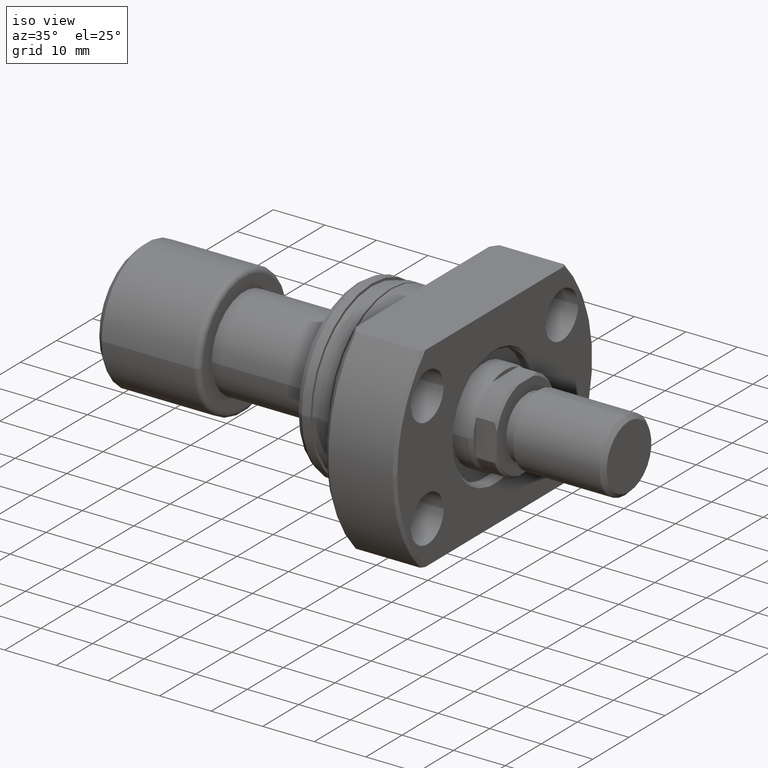
[diagram: clean part render]
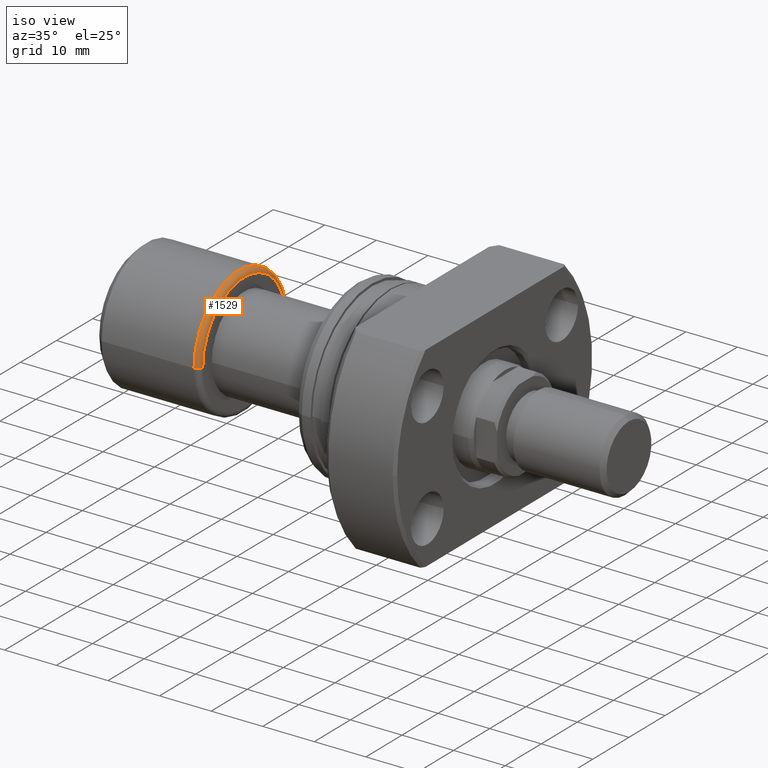
[diagram: same view with one face highlighted and labeled with its STEP entity id]
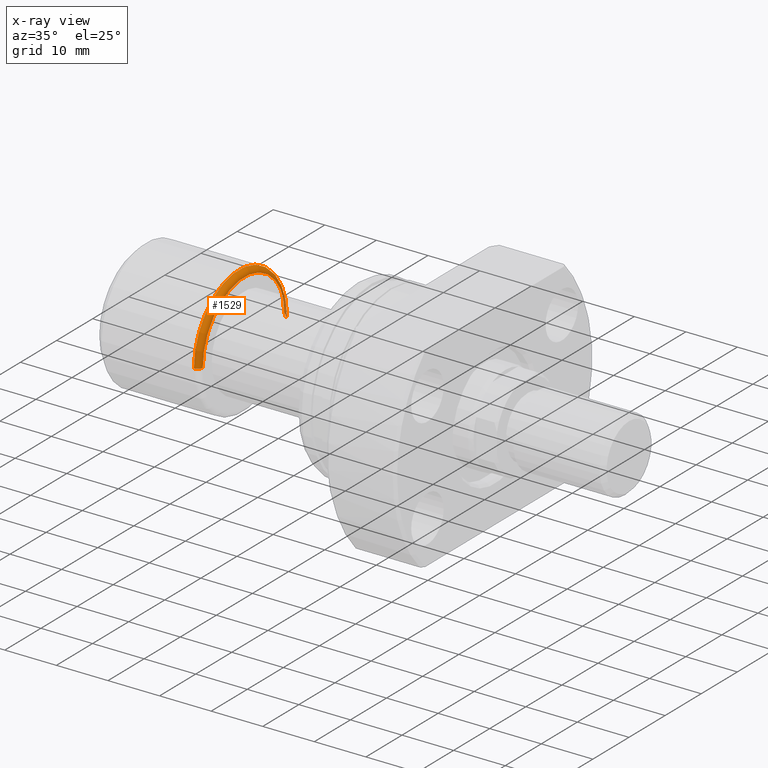
[diagram: x-ray of the same camera — body ghosted, the highlighted face saturated]
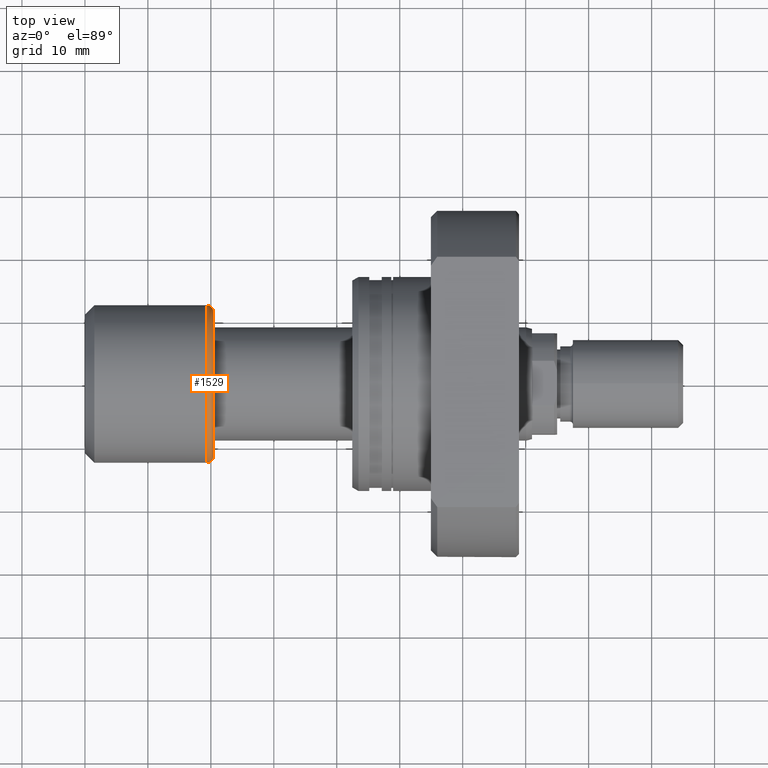
[diagram: same view with one face highlighted and labeled with its STEP entity id]
A machine part, iso view. The second image highlights one B-rep face of the part: STEP entity #1529.
The next image is the same camera in x-ray: the body ghosted, the highlighted face saturated — about 4% of this face is hidden behind the body in this view.
A second angle (top view) of the same face is appended — the face is thin or edge-on in the first view.
In plain terms, the highlighted toroidal blend (fillet) surface has major radius 11.5 mm and minor (blend) radius 1 mm.
Its self-contained STEP definition (entity closure, byte-faithful):
#87 = DIRECTION ( 'NONE',  ( 0.000000000000000000, -1.000000000000000000, 0.000000000000000000 ) ) ;
#179 = CIRCLE ( 'NONE', #2744, 1.000000000000000888 ) ;
#371 = DIRECTION ( 'NONE',  ( -1.000000000000000000, -1.069542322069065801E-17, -0.000000000000000000 ) ) ;
#401 = DIRECTION ( 'NONE',  ( 1.309811581274509052E-33, -1.224646799147353207E-16, 1.000000000000000000 ) ) ;
#561 = DIRECTION ( 'NONE',  ( 0.000000000000000000, -1.000000000000000000, 0.000000000000000000 ) ) ;
#645 = CARTESIAN_POINT ( 'NONE',  ( 19.40000000000000213, 2.074912104813987675E-16, 0.000000000000000000 ) ) ;
#670 = CARTESIAN_POINT ( 'NONE',  ( 19.40000000000000213, 12.50000000000000000, 1.530808498934191521E-15 ) ) ;
#681 = EDGE_CURVE ( 'NONE', #1124, #791, #1011, .T. ) ;
#684 = ORIENTED_EDGE ( 'NONE', *, *, #1769, .F. ) ;
#707 = DIRECTION ( 'NONE',  ( -1.000000000000000000, 0.000000000000000000, 0.000000000000000000 ) ) ;
#791 = VERTEX_POINT ( 'NONE', #670 ) ;
#792 = CIRCLE ( 'NONE', #1933, 12.50000000000000000 ) ;
#806 = CARTESIAN_POINT ( 'NONE',  ( 20.39999999999999858, 11.50000000000000000, 1.469576158976823947E-15 ) ) ;
#959 = DIRECTION ( 'NONE',  ( 0.000000000000000000, 0.000000000000000000, -1.000000000000000000 ) ) ;
#983 = VERTEX_POINT ( 'NONE', #1153 ) ;
#1011 = CIRCLE ( 'NONE', #2559, 1.000000000000000888 ) ;
#1041 = CARTESIAN_POINT ( 'NONE',  ( 19.39999999999999858, 0.000000000000000000, 0.000000000000000000 ) ) ;
#1124 = VERTEX_POINT ( 'NONE', #806 ) ;
#1143 = AXIS2_PLACEMENT_3D ( 'NONE', #3179, #3127, #561 ) ;
#1153 = CARTESIAN_POINT ( 'NONE',  ( 19.40000000000000213, -12.50000000000000000, 0.000000000000000000 ) ) ;
#1529 = ADVANCED_FACE ( 'NONE', ( #2936 ), #2571, .T. ) ;
#1769 = EDGE_CURVE ( 'NONE', #2347, #983, #179, .T. ) ;
#1807 = CARTESIAN_POINT ( 'NONE',  ( 20.39999999999999858, -11.50000000000000000, 0.000000000000000000 ) ) ;
#1848 = CARTESIAN_POINT ( 'NONE',  ( 19.39999999999999858, 11.50000000000000000, 1.408343819019456176E-15 ) ) ;
#1933 = AXIS2_PLACEMENT_3D ( 'NONE', #645, #371, #87 ) ;
#1974 = CIRCLE ( 'NONE', #1143, 11.50000000000000000 ) ;
#2011 = DIRECTION ( 'NONE',  ( -1.000000000000000000, -1.069542322069065801E-17, -0.000000000000000000 ) ) ;
#2131 = DIRECTION ( 'NONE',  ( 1.069542322069065955E-17, -1.000000000000000000, 0.000000000000000000 ) ) ;
#2189 = EDGE_CURVE ( 'NONE', #2347, #1124, #1974, .T. ) ;
#2347 = VERTEX_POINT ( 'NONE', #1807 ) ;
#2559 = AXIS2_PLACEMENT_3D ( 'NONE', #1848, #401, #2686 ) ;
#2571 = TOROIDAL_SURFACE ( 'NONE', #3212, 11.50000000000000000, 1.000000000000000888 ) ;
#2658 = ORIENTED_EDGE ( 'NONE', *, *, #3124, .F. ) ;
#2686 = DIRECTION ( 'NONE',  ( 0.000000000000000000, -1.000000000000000000, -1.224646799147353454E-16 ) ) ;
#2744 = AXIS2_PLACEMENT_3D ( 'NONE', #3528, #959, #707 ) ;
#2936 = FACE_OUTER_BOUND ( 'NONE', #3056, .T. ) ;
#3056 = EDGE_LOOP ( 'NONE', ( #3619, #3658, #2658, #684 ) ) ;
#3124 = EDGE_CURVE ( 'NONE', #983, #791, #792, .T. ) ;
#3127 = DIRECTION ( 'NONE',  ( -1.000000000000000000, -1.069542322069065801E-17, -0.000000000000000000 ) ) ;
#3179 = CARTESIAN_POINT ( 'NONE',  ( 20.39999999999999858, 2.181866337020894116E-16, 0.000000000000000000 ) ) ;
#3212 = AXIS2_PLACEMENT_3D ( 'NONE', #1041, #2011, #2131 ) ;
#3528 = CARTESIAN_POINT ( 'NONE',  ( 19.39999999999999858, -11.50000000000000000, 0.000000000000000000 ) ) ;
#3619 = ORIENTED_EDGE ( 'NONE', *, *, #2189, .T. ) ;
#3658 = ORIENTED_EDGE ( 'NONE', *, *, #681, .T. ) ;